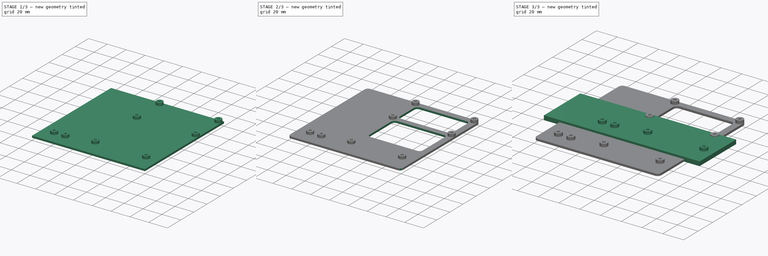
[diagram: build sequence overview — one tinted view per stage of 3, left to right]
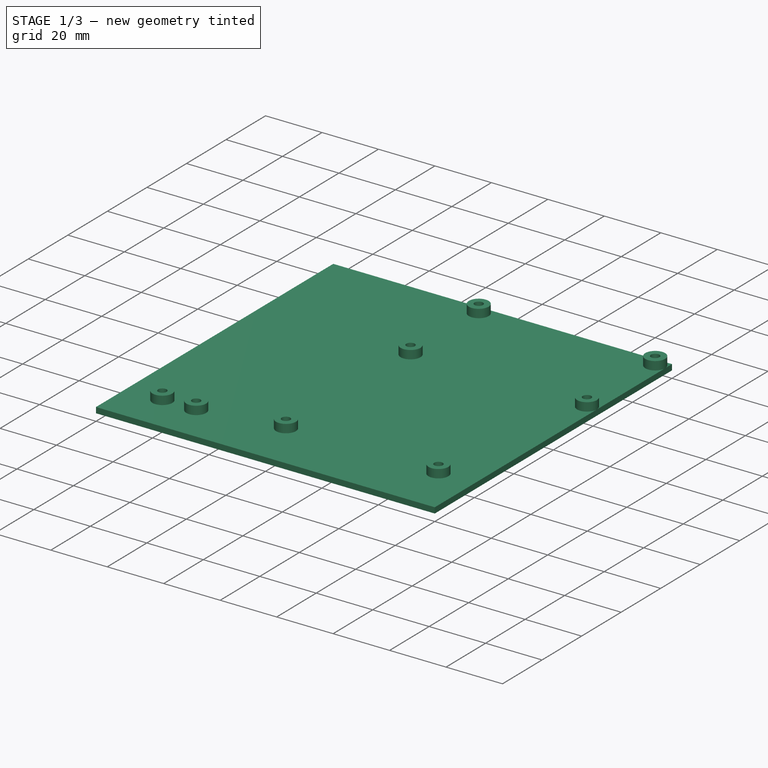
[diagram: stage 1 of 3 — iso view after this stage's code; geometry added in this stage tinted green]
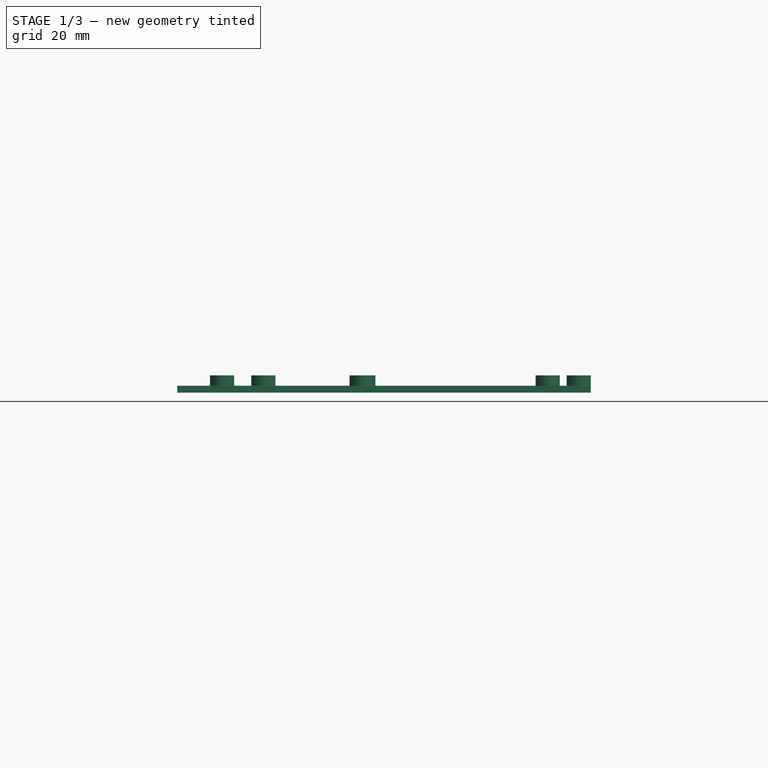
[diagram: stage 1 of 3 — front view after this stage's code; geometry added in this stage tinted green]
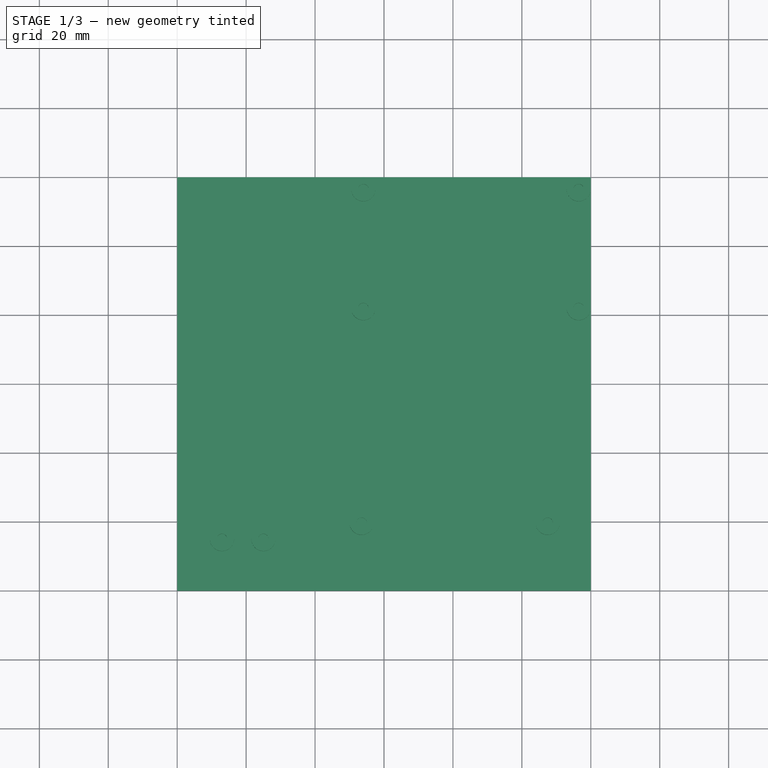
[diagram: stage 1 of 3 — top view after this stage's code; geometry added in this stage tinted green]
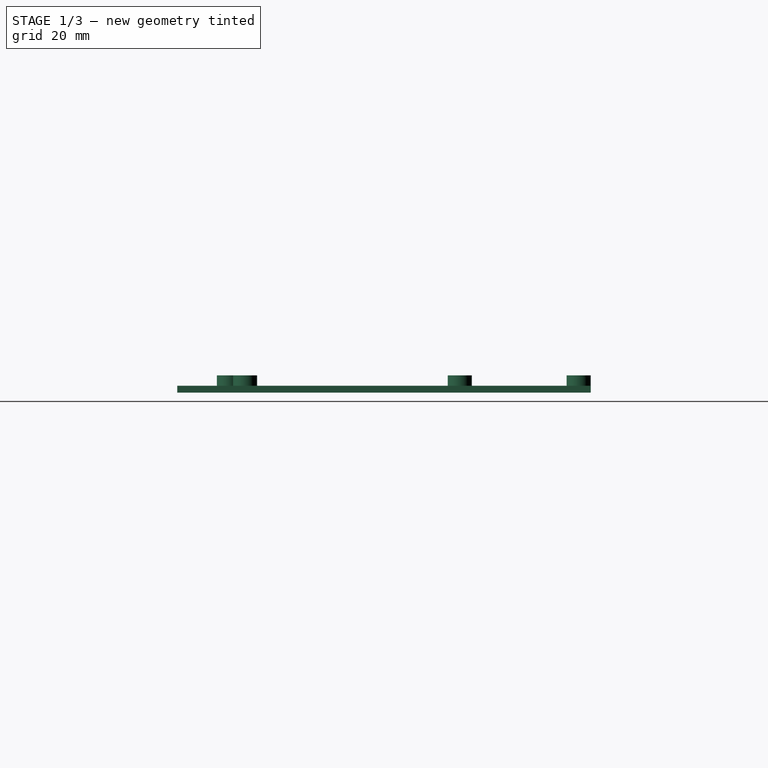
[diagram: stage 1 of 3 — right view after this stage's code; geometry added in this stage tinted green]
FCSTD DOCUMENT  (FreeCAD 0.20R26651 (Git))
Label: TestRig
License: All rights reserved
LicenseURL: http://en.wikipedia.org/wiki/All_rights_reserved
objects: Sketcher::SketchObject×5, PartDesign::Pad×4, PartDesign::Body×2, App::Part×2, Spreadsheet::Sheet×1, PartDesign::Pocket×1, PartDesign::Fillet×1
note: 19 computed .brp shape members not serialized (recipe doc carries the construction recipe); baked Part::Feature solids carry a one-line shape summary decoded from their .brp

FEATURE [PartDesign::Body] Body  label="BasePlate"
  Group = -> [Sketch,Pad,Sketch001,Pad001]
  Origin = -> Origin001
  Tip = -> Pad001
FEATURE [App::Part] Part  label="Raspi"
  Group = -> [Body]
  Origin = -> Origin
FEATURE [Sketcher::SketchObject] Sketch002
  FullyConstrained = true
  MapMode = 5
  Support = -> [XY_Plane003]
  expr: Constraints[9] = Spreadsheet.dev_board_base_plate_width
  expr: Constraints[8] = Spreadsheet.dev_board_base_plate_height
  sketch-geometry (4):
    g0: LineSegment StartX=-60 StartY=-60 StartZ=0 EndX=60 EndY=-60 EndZ=0
    g1: LineSegment StartX=60 StartY=-60 StartZ=0 EndX=60 EndY=60 EndZ=0
    g2: LineSegment StartX=60 StartY=60 StartZ=0 EndX=-60 EndY=60 EndZ=0
    g3: LineSegment StartX=-60 StartY=60 StartZ=0 EndX=-60 EndY=-60 EndZ=0
  constraints (10):
    c: Coincident(g0,g1)
    c: Coincident(g1,g2)
    c: Coincident(g2,g3)
    c: Coincident(g3,g0)
    c: Horizontal(g0)
    c: Vertical(g3)
    c: Symmetric(g2,g1,g-2)
    c: Symmetric(g1,g0,g-1)
    c: Distance(g1) = 120
    c: Distance(g2) = 120
FEATURE [PartDesign::Pad] Pad002
  Direction = (0,0,1)
  Length = 2
  Length2 = 100
  Profile = -> Sketch002
  ReferenceAxis = -> Sketch002 [N_Axis]
  Type = 0
  expr: Length = Spreadsheet.dev_board_base_plate_depth
FEATURE [Sketcher::SketchObject] Sketch003
  ExternalGeometry = -> [Pad002]
  FullyConstrained = true
  MapMode = 5
  Placement = pos=(0,0,2) rot=(0,0,1;0rad)
  Support = -> [Pad002]
  expr: Constraints[57] = Spreadsheet.dev_board_hole_dist_x
  expr: Constraints[56] = Spreadsheet.dev_board_hole_dia + 4mm
  expr: Constraints[48] = Spreadsheet.dev_board_hole_dia
  expr: Constraints[28] = Spreadsheet.lcd_fpc_ada_hole_dia + 4mm
  expr: Constraints[24] = Spreadsheet.lcd_fpc_ada_hole_dia
  expr: Constraints[19] = Spreadsheet.touch_fpc_ada_hole_dia + 4mm
  expr: Constraints[18] = Spreadsheet.touch_fpc_ada_hole_dia
  expr: Constraints[13] = Spreadsheet.adapter_v_dist
  expr: Constraints[40] = Spreadsheet.dev_board_hole_dist_y
  expr: Constraints[1] = Spreadsheet.adapter_h_dist
  expr: Constraints[9] = Spreadsheet.lcd_fpc_ada_hole_dist
  expr: Constraints[6] = Spreadsheet.touch_fpc_hole_dist
  sketch-geometry (26):
    g0: LineSegment StartX=-41 StartY=-45 StartZ=0 EndX=21.5 EndY=-45 EndZ=0
    g1: LineSegment StartX=-6.5 StartY=-40.3 StartZ=0 EndX=47.5 EndY=-40.3 EndZ=0
    g2: LineSegment StartX=-35 StartY=-45 StartZ=0 EndX=-47 EndY=-45 EndZ=0
    g3: GeomPoint X=-41 Y=-45 Z=0
    g4: GeomPoint X=21.5 Y=-40.3 Z=0
    g5: LineSegment StartX=21.5 StartY=-40.3 StartZ=0 EndX=21.5 EndY=-45 EndZ=0
    g6: Circle CenterX=-47 CenterY=-45 CenterZ=0 NormalX=0 NormalY=0 NormalZ=1 AngleXU=0 Radius=1.5
    g7: Circle CenterX=-35 CenterY=-45 CenterZ=0 NormalX=0 NormalY=0 NormalZ=1 AngleXU=0 Radius=1.5
    g8: Circle CenterX=-35 CenterY=-45 CenterZ=0 NormalX=0 NormalY=0 NormalZ=1 AngleXU=0 Radius=3.5
    g9: Circle CenterX=-47 CenterY=-45 CenterZ=0 NormalX=0 NormalY=0 NormalZ=1 AngleXU=0 Radius=3.5
    g10: Circle CenterX=-6.5 CenterY=-40.3 CenterZ=0 NormalX=0 NormalY=0 NormalZ=1 AngleXU=0 Radius=1.5
    g11: Circle CenterX=47.5 CenterY=-40.3 CenterZ=0 NormalX=0 NormalY=0 NormalZ=1 AngleXU=0 Radius=1.5
    g12: Circle CenterX=-6.5 CenterY=-40.3 CenterZ=0 NormalX=0 NormalY=0 NormalZ=1 AngleXU=0 Radius=3.5
    g13: Circle CenterX=47.5 CenterY=-40.3 CenterZ=0 NormalX=0 NormalY=0 NormalZ=1 AngleXU=0 Radius=3.5
    g14: LineSegment StartX=56.5 StartY=56.5 StartZ=0 EndX=-6 EndY=56.5 EndZ=0
    g15: LineSegment StartX=-6 StartY=56.5 StartZ=0 EndX=-6 EndY=22 EndZ=0
    g16: LineSegment StartX=-6 StartY=22 StartZ=0 EndX=56.5 EndY=22 EndZ=0
    g17: LineSegment StartX=56.5 StartY=22 StartZ=0 EndX=56.5 EndY=56.5 EndZ=0
    g18: Circle CenterX=56.5 CenterY=22 CenterZ=0 NormalX=0 NormalY=0 NormalZ=1 AngleXU=0 Radius=1.5
    g19: Circle CenterX=56.5 CenterY=56.5 CenterZ=0 NormalX=0 NormalY=0 NormalZ=1 AngleXU=0 Radius=1.5
    g20: Circle CenterX=-6 CenterY=56.5 CenterZ=0 NormalX=0 NormalY=0 NormalZ=1 AngleXU=0 Radius=1.5
    g21: Circle CenterX=-6 CenterY=22 CenterZ=0 NormalX=0 NormalY=0 NormalZ=1 AngleXU=0 Radius=1.5
    g22: Circle CenterX=56.5 CenterY=56.5 CenterZ=0 NormalX=0 NormalY=0 NormalZ=1 AngleXU=0 Radius=3.5
    g23: Circle CenterX=-6 CenterY=56.5 CenterZ=0 NormalX=0 NormalY=0 NormalZ=1 AngleXU=0 Radius=3.5
    g24: Circle CenterX=-6 CenterY=22 CenterZ=0 NormalX=0 NormalY=0 NormalZ=1 AngleXU=0 Radius=3.5
    g25: Circle CenterX=56.5 CenterY=22 CenterZ=0 NormalX=0 NormalY=0 NormalZ=1 AngleXU=0 Radius=3.5
  constraints (60):
    c: Horizontal(g0)
    c: Distance(g0) = 62.5
    c: Horizontal(g1)
    c: Horizontal(g2)
    c: Symmetric(g2,g2,g3)
    c: Coincident(g3,g0)
    c: Distance(g2) = 12
    c: PointOnObject(g4,g1)
    c: Distance(g4,g1) = 26
    c: Distance(g1) = 54
    c: Coincident(g5,g4)
    c: Coincident(g5,g0)
    c: Vertical(g5)
    c: Distance(g5) = 4.7
    c: Coincident(g6,g2)
    c: Coincident(g7,g2)
    c: Coincident(g8,g7)
    c: Coincident(g9,g6)
    c: Diameter(g6) = 3
    c: Diameter(g9) = 7
    c: Equal(g6,g7)
    c: Equal(g8,g9)
    c: Coincident(g10,g1)
    c: Coincident(g11,g1)
    c: Diameter(g10) = 3
    c: Equal(g10,g11)
    c: Coincident(g12,g10)
    c: Coincident(g13,g11)
    c: Diameter(g12) = 7
    c: Equal(g13,g12)
    c: Distance(g6,g-3) = 15
    c: Distance(g11,g-4) = 12.5
    c: Coincident(g14,g15)
    c: Coincident(g15,g16)
    c: Coincident(g16,g17)
    c: Coincident(g17,g14)
    c: Horizontal(g14)
    c: Horizontal(g16)
    c: Vertical(g15)
    c: Vertical(g17)
    c: Distance(g15) = 34.5
    c: Coincident(g18,g16)
    c: Coincident(g19,g14)
    c: Coincident(g20,g14)
    c: Coincident(g21,g15)
    c: Equal(g18,g19)
    c: Equal(g19,g20)
    c: Equal(g20,g21)
    c: Diameter(g18) = 3
    c: Coincident(g22,g19)
    c: Coincident(g23,g20)
    c: Coincident(g24,g21)
    c: Coincident(g25,g18)
    c: Equal(g25,g22)
    c: Equal(g22,g23)
    c: Equal(g23,g24)
    c: Diameter(g25) = 7
    c: Distance(g16) = 62.5
    c: Distance(g19,g-5) = 3.5
    c: Distance(g19,g-4) = 3.5
FEATURE [PartDesign::Pad] Pad003
  BaseFeature = -> Pad002
  Direction = (0,0,1)
  Length = 3
  Length2 = 100
  Profile = -> Sketch003
  ReferenceAxis = -> Sketch003 [N_Axis]
  Type = 0
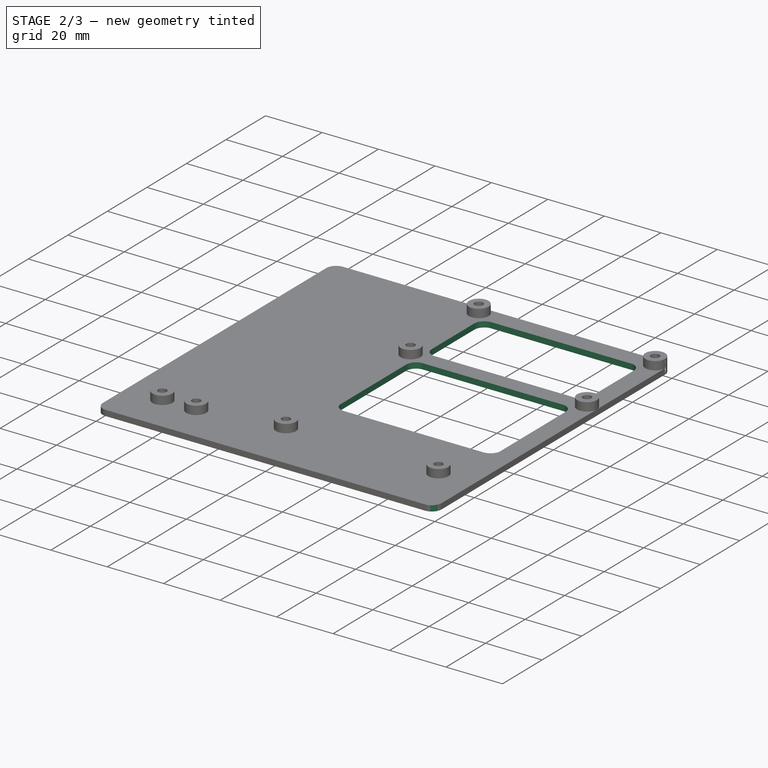
[diagram: stage 2 of 3 — iso view after this stage's code; geometry added in this stage tinted green]
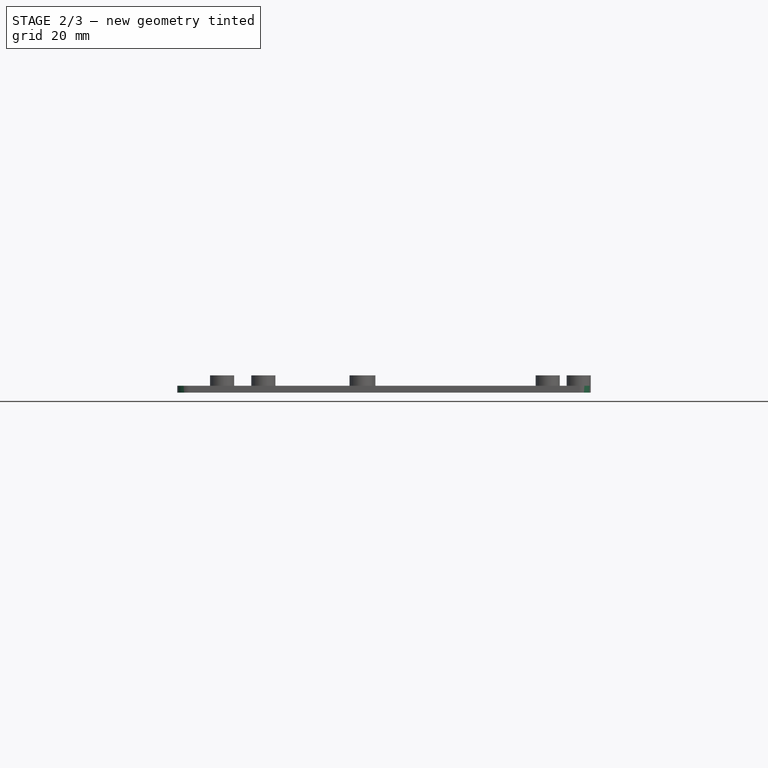
[diagram: stage 2 of 3 — front view after this stage's code; geometry added in this stage tinted green]
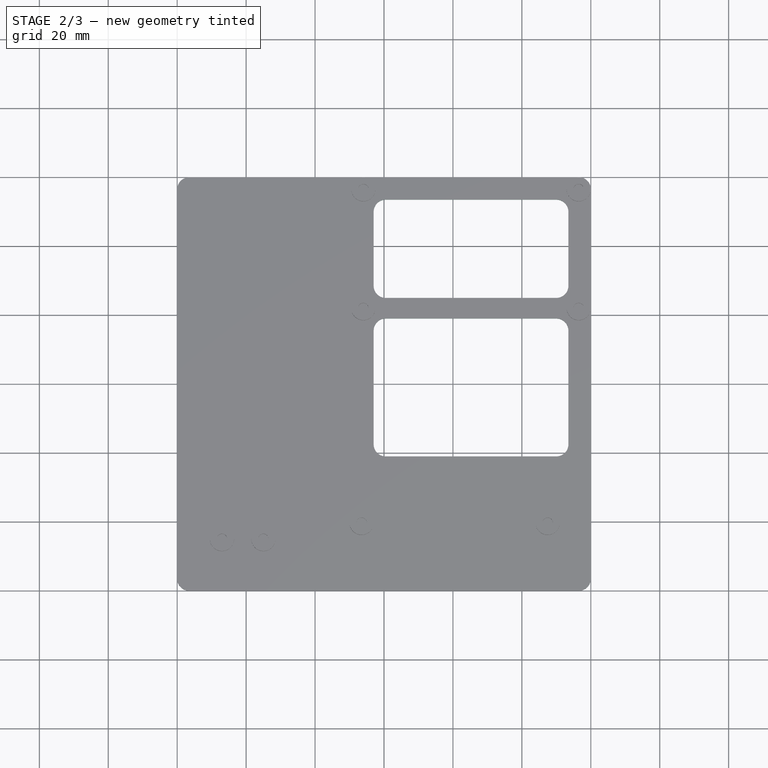
[diagram: stage 2 of 3 — top view after this stage's code; geometry added in this stage tinted green]
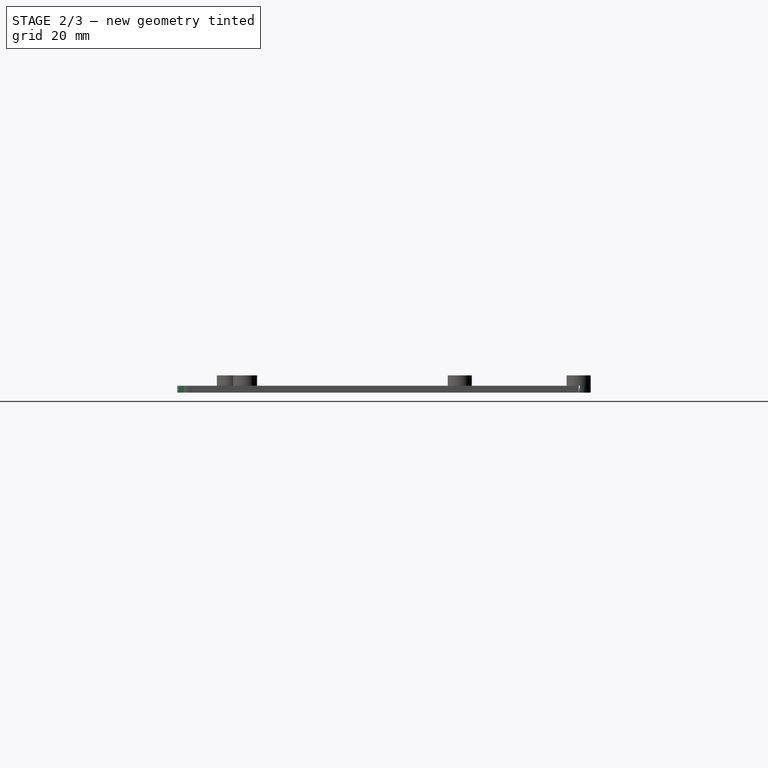
[diagram: stage 2 of 3 — right view after this stage's code; geometry added in this stage tinted green]
FEATURE [Sketcher::SketchObject] Sketch004
  ExternalGeometry = -> [Pad003]
  FullyConstrained = true
  MapMode = 5
  Placement = pos=(0,0,2) rot=(0,0,1;0rad)
  Support = -> [Pad003]
  sketch-geometry (14):
    g0: LineSegment StartX=-3 StartY=53.5 StartZ=0 EndX=53.5 EndY=53.5 EndZ=0
    g1: LineSegment StartX=53.5 StartY=53.5 StartZ=0 EndX=53.5 EndY=25 EndZ=0
    g2: LineSegment StartX=53.5 StartY=25 StartZ=0 EndX=-3 EndY=25 EndZ=0
    g3: LineSegment StartX=-3 StartY=25 StartZ=0 EndX=-3 EndY=53.5 EndZ=0
    g4: LineSegment StartX=-6 StartY=56.5 StartZ=0 EndX=-3 EndY=53.5 EndZ=0
    g5: LineSegment StartX=56.5 StartY=56.5 StartZ=0 EndX=53.5 EndY=53.5 EndZ=0
    g6: LineSegment StartX=56.5 StartY=22 StartZ=0 EndX=53.5 EndY=25 EndZ=0
    g7: LineSegment StartX=-3 StartY=19 StartZ=0 EndX=53.5 EndY=19 EndZ=0
    g8: LineSegment StartX=53.5 StartY=19 StartZ=0 EndX=53.5 EndY=-21 EndZ=0
    g9: LineSegment StartX=53.5 StartY=-21 StartZ=0 EndX=-3 EndY=-21 EndZ=0
    g10: LineSegment StartX=-3 StartY=-21 StartZ=0 EndX=-3 EndY=19 EndZ=0
    g11: LineSegment StartX=-3 StartY=25 StartZ=0 EndX=-3 EndY=19 EndZ=0
    g12: LineSegment StartX=53.5 StartY=25 StartZ=0 EndX=53.5 EndY=19 EndZ=0
    g13: LineSegment StartX=56.5 StartY=22 StartZ=0 EndX=53.5 EndY=19 EndZ=0
  constraints (36):
    c: Coincident(g0,g1)
    c: Coincident(g1,g2)
    c: Coincident(g2,g3)
    c: Coincident(g3,g0)
    c: Horizontal(g0)
    c: Horizontal(g2)
    c: Vertical(g1)
    c: Vertical(g3)
    c: Coincident(g4,g-3)
    c: Coincident(g4,g0)
    c: Coincident(g5,g-4)
    c: Coincident(g5,g0)
    c: Coincident(g6,g-5)
    c: Coincident(g6,g1)
    c: Equal(g4,g5)
    c: Equal(g5,g6)
    c: Distance(g0,g-7) = 6.5
    c: Distance(g0,g-8) = 6.5
    c: Coincident(g7,g8)
    c: Coincident(g8,g9)
    c: Coincident(g9,g10)
    c: Coincident(g10,g7)
    c: Horizontal(g7)
    c: Horizontal(g9)
    c: Vertical(g8)
    c: Vertical(g10)
    c: Coincident(g11,g2)
    c: Coincident(g11,g7)
    c: Vertical(g11)
    c: Coincident(g12,g1)
    c: Coincident(g12,g7)
    c: Vertical(g12)
    c: Coincident(g13,g6)
    c: Coincident(g13,g7)
    c: Equal(g6,g13)
    c: Distance(g8) = 40
FEATURE [PartDesign::Pocket] Pocket
  BaseFeature = -> Pad003
  Direction = (0,0,-1)
  Length = 2
  Length2 = 100
  Profile = -> Sketch004
  ReferenceAxis = -> Sketch004 [N_Axis]
  Type = 0
FEATURE [PartDesign::Fillet] Fillet
  Base = -> Pocket [Edge8,Edge2,Edge1,Edge5,Edge50,Edge48,Edge47,Edge49,Edge46,Edge44,Edge43,Edge45]
  BaseFeature = -> Pocket
  Radius = 3.5
  SupportTransform = false
FEATURE [PartDesign::Body] Body001  label="DevBoardBasePlate"
  Group = -> [Sketch002,Pad002,Sketch003,Pad003,Sketch004,Pocket,Fillet]
  Origin = -> Origin003
  Tip = -> Fillet
FEATURE [App::Part] Part001  label="DevBoard"
  Group = -> [Body001]
  Origin = -> Origin002
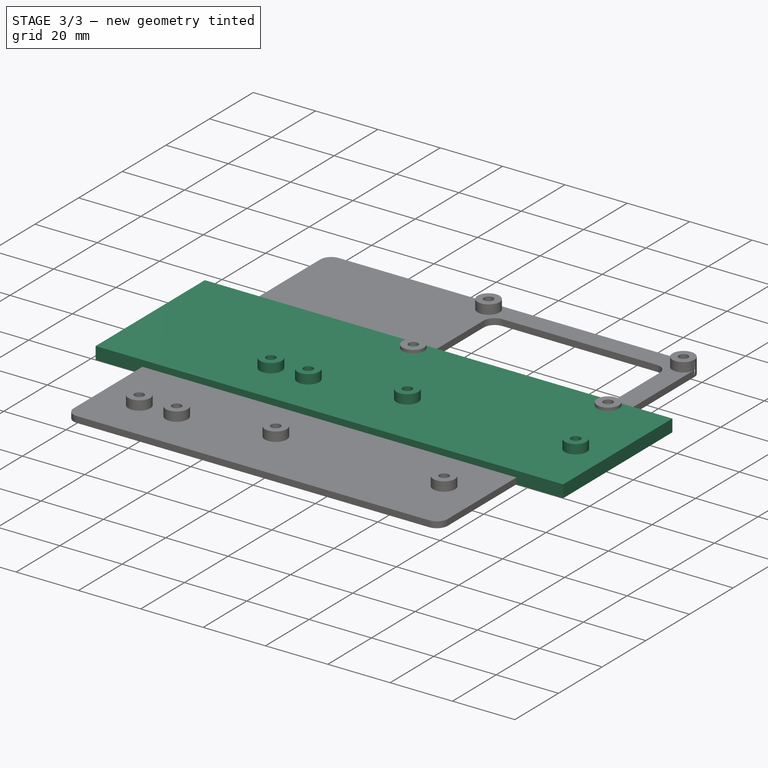
[diagram: stage 3 of 3 — iso view after this stage's code; geometry added in this stage tinted green]
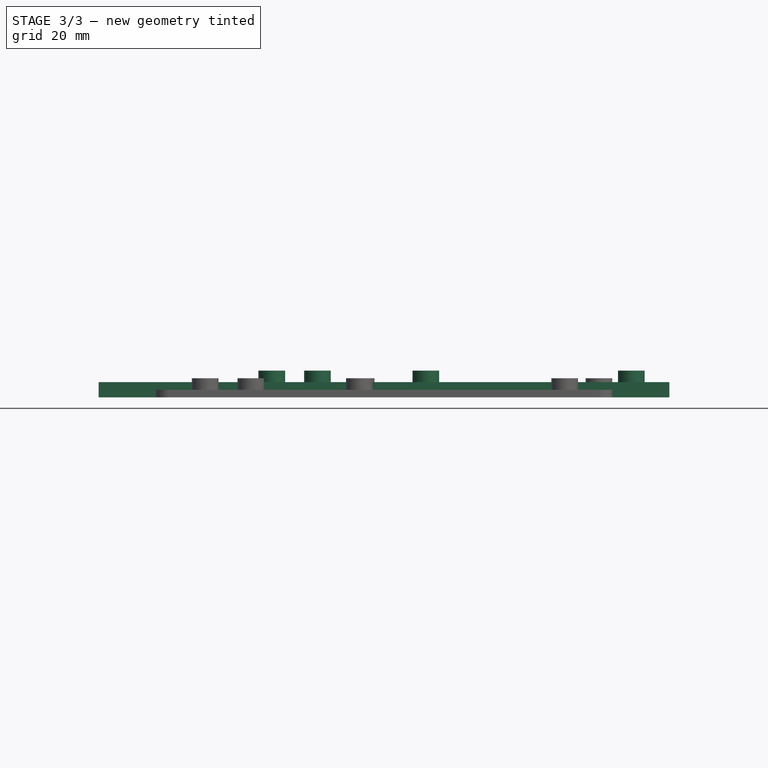
[diagram: stage 3 of 3 — front view after this stage's code; geometry added in this stage tinted green]
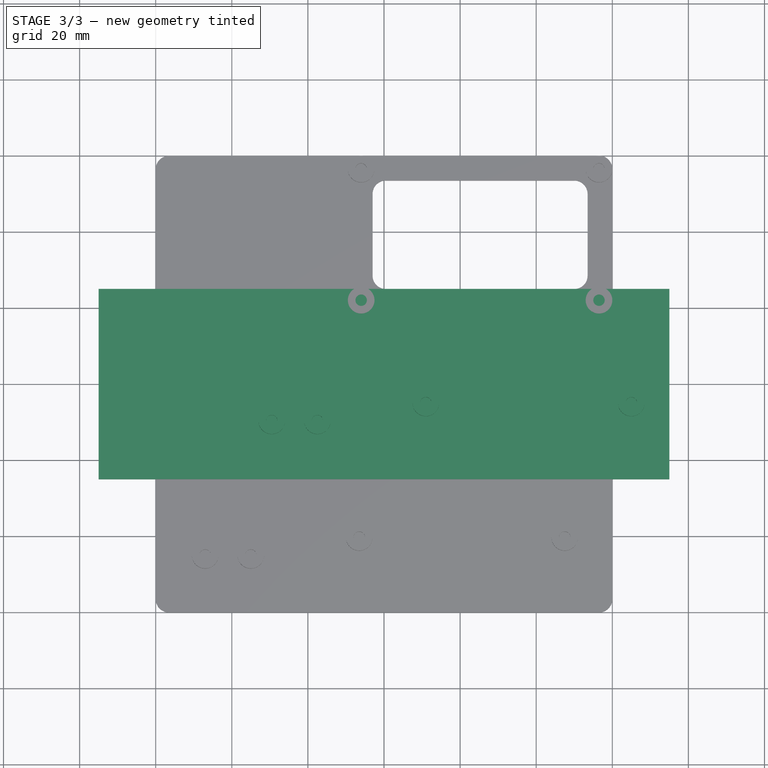
[diagram: stage 3 of 3 — top view after this stage's code; geometry added in this stage tinted green]
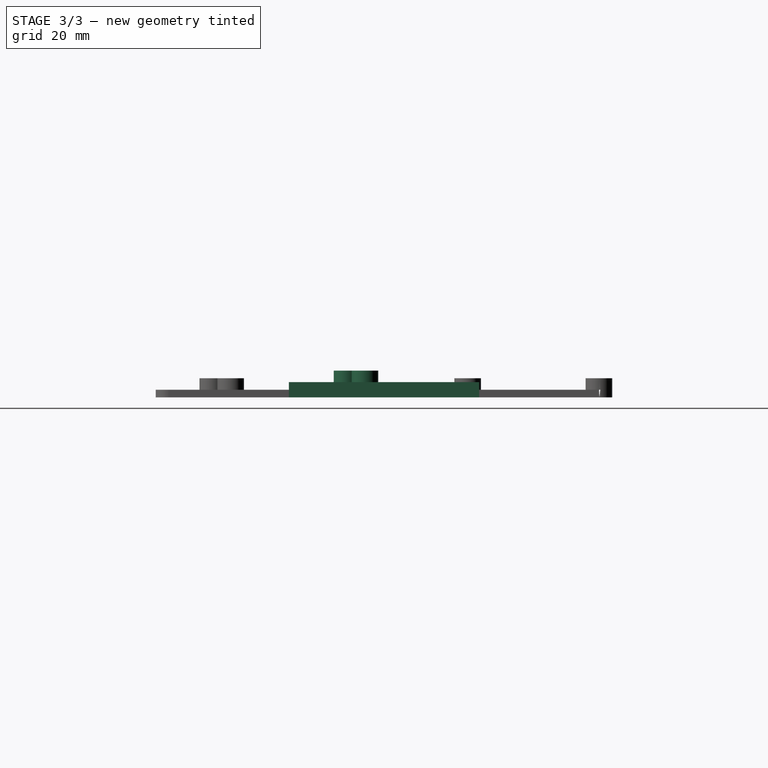
[diagram: stage 3 of 3 — right view after this stage's code; geometry added in this stage tinted green]
FEATURE [Spreadsheet::Sheet] Spreadsheet
  cells = A1=Touch-FPC-Adapter; B2=hole_diameter; C2(touch_fpc_ada_hole_dia)==3mm; B3=hole_dist; C3(touch_fpc_hole_dist)==12mm; A5=LCD-FPC-Adapter; B6=hole_diameter; C6(lcd_fpc_ada_hole_dia)==3mm; B7=hole_dist; C7(lcd_fpc_ada_hole_dist)==54mm; B9=adapter_h_dist; C9(adapter_h_dist)==62.5mm; D9=ermittelt aus datasheet; B10=adapter_v_dist; C10(adapter_v_dist)==4.7mm; D10=ermittelt aus datasheet; E10==7mm; A12=Base-Plate (Raspi); B13=width; C13(base_plate_width)==150mm; B14=height; C14(base_plate_height)==50mm; B15=depth; C15(base_plate_depth)==4mm; A18=ST-DevBoard; B19=hole_diameter; C19(dev_board_hole_dia)==3mm; B20=hole_dist_x; C20(dev_board_hole_dist_x)==62.5mm; B21=hole_dist_y; C21(dev_board_hole_dist_y)==34.5mm; A23=Base-Plate (DevBoard); B24=width; C24(dev_board_base_plate_width)==120mm; B25=height; C25(dev_board_base_plate_height)==120mm; B26=depth; C26(dev_board_base_plate_depth)==2mm
FEATURE [Sketcher::SketchObject] Sketch
  FullyConstrained = true
  MapMode = 5
  Support = -> [XY_Plane001]
  expr: Constraints[5] = Spreadsheet.base_plate_width
  expr: Constraints[6] = Spreadsheet.base_plate_height
  sketch-geometry (4):
    g0: LineSegment StartX=-75 StartY=-25 StartZ=0 EndX=75 EndY=-25 EndZ=0
    g1: LineSegment StartX=75 StartY=-25 StartZ=0 EndX=75 EndY=25 EndZ=0
    g2: LineSegment StartX=75 StartY=25 StartZ=0 EndX=-75 EndY=25 EndZ=0
    g3: LineSegment StartX=-75 StartY=25 StartZ=0 EndX=-75 EndY=-25 EndZ=0
  constraints (10):
    c: Coincident(g0,g1)
    c: Coincident(g1,g2)
    c: Coincident(g2,g3)
    c: Coincident(g3,g0)
    c: Horizontal(g2)
    c: Distance(g2) = 150
    c: Distance(g1) = 50
    c: Symmetric(g0,g0,g-2)
    c: Symmetric(g2,g0,g-1)
    c: Vertical(g1)
FEATURE [PartDesign::Pad] Pad
  Direction = (0,0,1)
  Length = 4
  Length2 = 100
  Profile = -> Sketch
  ReferenceAxis = -> Sketch [N_Axis]
  Type = 0
  expr: Length = Spreadsheet.base_plate_depth
FEATURE [Sketcher::SketchObject] Sketch001
  ExternalGeometry = -> [Pad]
  FullyConstrained = true
  MapMode = 5
  Placement = pos=(0,0,4) rot=(0,0,1;0rad)
  Support = -> [Pad]
  expr: Constraints[2] = Spreadsheet.touch_fpc_ada_hole_dia
  expr: Constraints[11] = Spreadsheet.lcd_fpc_ada_hole_dist
  expr: Constraints[12] = Spreadsheet.touch_fpc_ada_hole_dia
  expr: Constraints[29] = Spreadsheet.adapter_h_dist
  expr: Constraints[21] = Spreadsheet.touch_fpc_hole_dist
  expr: Constraints[28] = Spreadsheet.adapter_v_dist
  sketch-geometry (14):
    g0: Circle CenterX=-29.5 CenterY=-9.7 CenterZ=0 NormalX=0 NormalY=0 NormalZ=1 AngleXU=0 Radius=1.5
    g1: Circle CenterX=-29.5 CenterY=-9.7 CenterZ=0 NormalX=0 NormalY=0 NormalZ=1 AngleXU=0 Radius=3.5
    g2: Circle CenterX=-17.5 CenterY=-9.7 CenterZ=0 NormalX=0 NormalY=0 NormalZ=1 AngleXU=0 Radius=1.5
    g3: Circle CenterX=-17.5 CenterY=-9.7 CenterZ=0 NormalX=0 NormalY=0 NormalZ=1 AngleXU=0 Radius=3.5
    g4: Circle CenterX=11 CenterY=-5 CenterZ=0 NormalX=0 NormalY=0 NormalZ=1 AngleXU=0 Radius=1.5
    g5: Circle CenterX=11 CenterY=-5 CenterZ=0 NormalX=0 NormalY=0 NormalZ=1 AngleXU=0 Radius=3.5
    g6: Circle CenterX=65 CenterY=-5 CenterZ=0 NormalX=0 NormalY=0 NormalZ=1 AngleXU=0 Radius=1.5
    g7: Circle CenterX=65 CenterY=-5 CenterZ=0 NormalX=0 NormalY=0 NormalZ=1 AngleXU=0 Radius=3.5
    g8: LineSegment StartX=11 StartY=-5 StartZ=0 EndX=65 EndY=-5 EndZ=0
    g9: GeomPoint X=39 Y=-5 Z=0
    g10: LineSegment StartX=-17.5 StartY=-9.7 StartZ=0 EndX=-29.5 EndY=-9.7 EndZ=0
    g11: GeomPoint X=-23.5 Y=-9.7 Z=0
    g12: LineSegment StartX=39 StartY=-5 StartZ=0 EndX=39 EndY=-9.7 EndZ=0
    g13: LineSegment StartX=39 StartY=-9.7 StartZ=0 EndX=-23.5 EndY=-9.7 EndZ=0
  constraints (32):
    c: Coincident(g1,g0)
    c: Coincident(g3,g2)
    c: Diameter(g0) = 3
    c: Equal(g0,g2)
    c: Diameter(g3) = 7
    c: Equal(g3,g1)
    c: Coincident(g5,g4)
    c: Coincident(g7,g6)
    c: Coincident(g8,g4)
    c: Coincident(g8,g6)
    c: Horizontal(g8)
    c: DistanceX(g8,g8) = 54
    c: Diameter(g4) = 3
    c: Equal(g4,g6)
    c: Diameter(g7) = 7
    c: Equal(g7,g5)
    c: Distance(g6,g-3) = 10
    c: DistanceY(g-1,g4) = -5
    c: Coincident(g10,g2)
    c: Coincident(g10,g0)
    c: Horizontal(g10)
    c: Distance(g10) = 12
    c: Coincident(g12,g9)
    c: Vertical(g12)
    c: Coincident(g13,g12)
    c: Coincident(g13,g11)
    c: Horizontal(g13)
    c: Symmetric(g2,g0,g11)
    c: Distance(g12) = 4.7
    c: Distance(g13) = 62.5
    c: PointOnObject(g9,g8)
    c: Distance(g9,g6) = 26
FEATURE [PartDesign::Pad] Pad001
  BaseFeature = -> Pad
  Direction = (0,0,1)
  Length = 3
  Length2 = 100
  Profile = -> Sketch001
  ReferenceAxis = -> Sketch001 [N_Axis]
  Type = 0
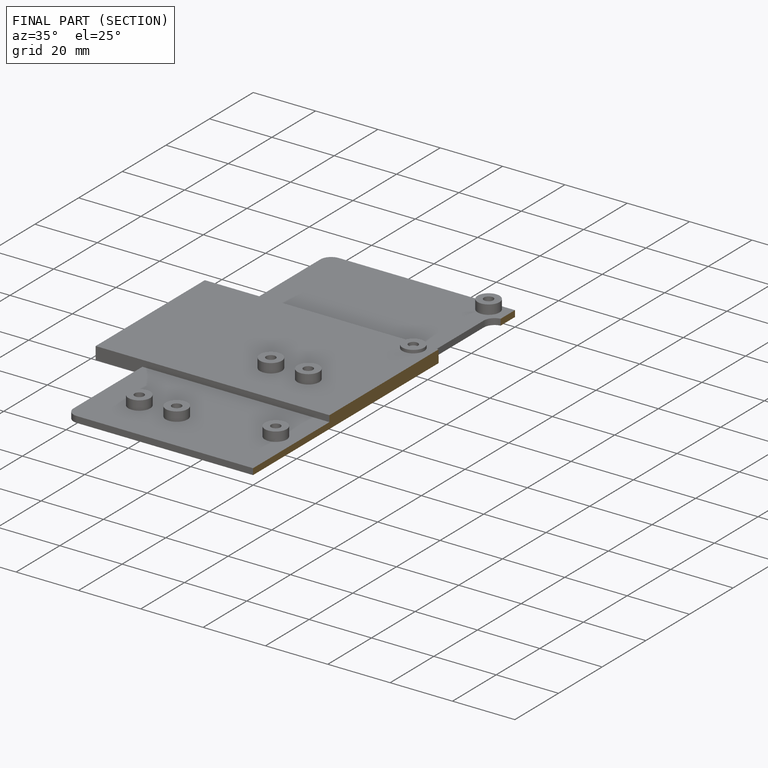
[diagram: finished part — half-section view (interior)]
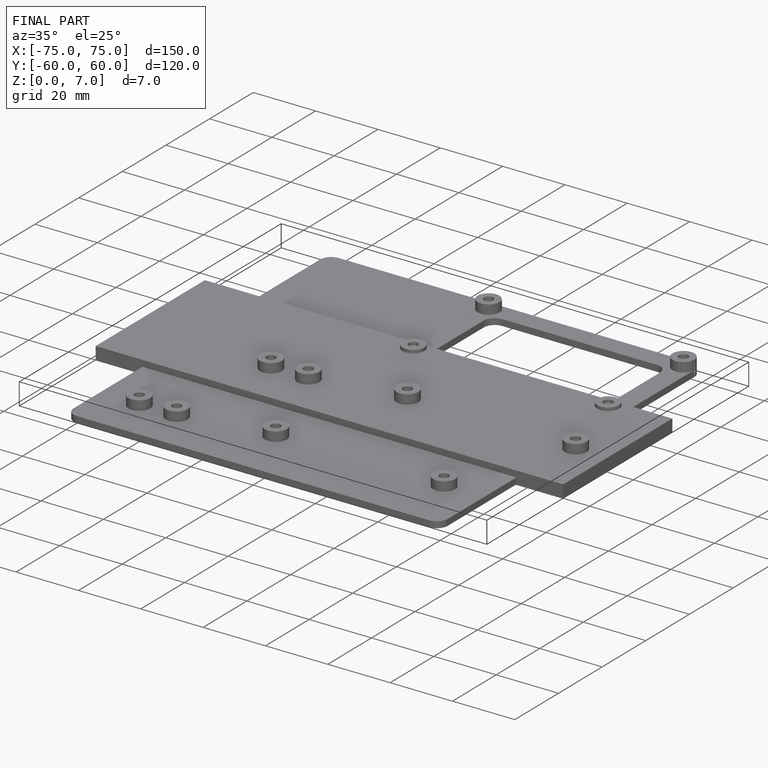
[diagram: finished part — iso view with bounding-box wireframe]
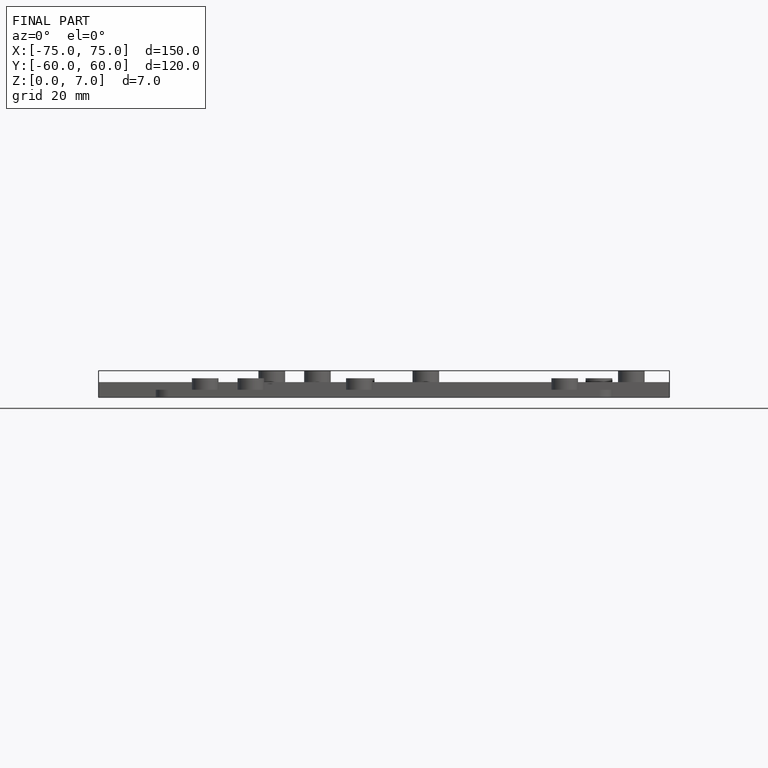
[diagram: finished part — front view with bounding-box wireframe]
